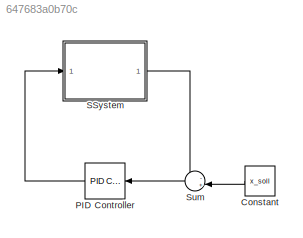
MODEL slx_647683a0b70c
KIND model
CONFIG AbsTol = auto
CONFIG EnableMultiTasking = off
CONFIG FixedStep = 1e-3
CONFIG MaxStep = auto
CONFIG MinStep = auto
CONFIG RelTol = 1e-3
CONFIG SampleTimeConstraint = Unconstrained
CONFIG Solver = ode8
CONFIG SolverName = ode8
CONFIG StartTime = 0.0
CONFIG StopTime = 30
BLOCK [Constant] Constant
  Value = x_soll
BLOCK [Reference] PID Controller  REF=simulink/Continuous/PID Controller
  Ports = [1, 1]
  SourceBlock = simulink/Continuous/PID Controller
  SourceProductBaseCode = SL
  SourceProductName = Simulink
  SourceType = PID 1dof
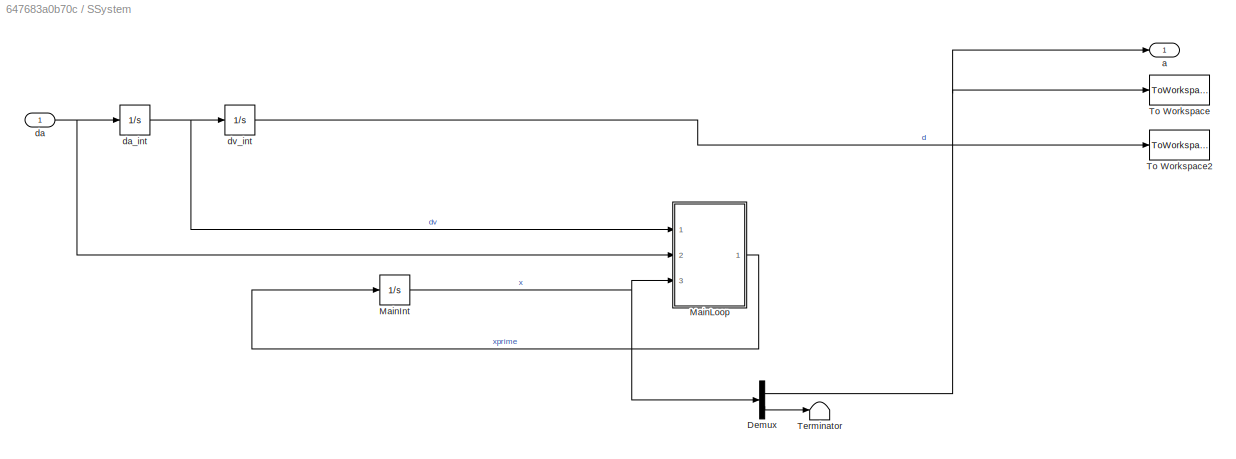
BLOCK [SubSystem] SSystem
  Ports = [1, 1]
  RequestExecContextInheritance = off
BLOCK [Demux] SSystem/Demux
  DisplayOption = bar
  Outputs = 2
  Ports = [1, 2]
BLOCK [Integrator] SSystem/MainInt
  InitialCondition = x_initial
  Ports = [1, 1]
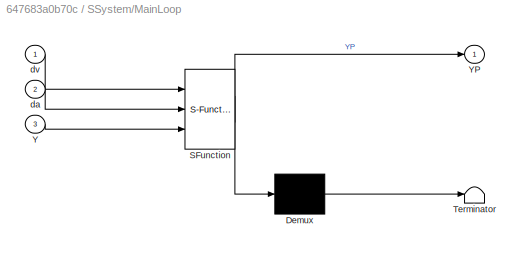
BLOCK [SubSystem] SSystem/MainLoop
  ErrorFcn = Stateflow.Translate.translate
  PermitHierarchicalResolution = ExplicitOnly
  Ports = [3, 1]
  RequestExecContextInheritance = off
  SFBlockType = MATLAB Function
  TreatAsAtomicUnit = on
BLOCK [Demux] SSystem/MainLoop/ Demux 
  Outputs = 1
  Ports = [1, 1]
BLOCK [S-Function] SSystem/MainLoop/ SFunction 
  EnableBusSupport = on
  FunctionName = sf_sfun
  PortCounts = [3 2]
  Ports = [3, 2]
  SFcnIsStateOwnerBlock = off
  SFunctionDeploymentMode = off
  Tag = Stateflow S-Function PID_Sim 2
BLOCK [Terminator] SSystem/MainLoop/ Terminator 
BLOCK [Inport] SSystem/MainLoop/Y
  IconDisplay = Port number
  Port = 3
BLOCK [Outport] SSystem/MainLoop/YP
  IconDisplay = Port number
BLOCK [Inport] SSystem/MainLoop/da
  IconDisplay = Port number
  Port = 2
BLOCK [Inport] SSystem/MainLoop/dv
  IconDisplay = Port number
BLOCK [Terminator] SSystem/Terminator
BLOCK [ToWorkspace] SSystem/To Workspace
  FixptAsFi = on
  MaxDataPoints = inf
  Ports = [1]
  SampleTime = -1
  Save2DSignal = 3-D array (concatenate along third dimension)
  SaveFormat = Timeseries
  VariableName = a
BLOCK [ToWorkspace] SSystem/To Workspace2
  FixptAsFi = on
  MaxDataPoints = inf
  Ports = [1]
  SampleTime = -1
  Save2DSignal = 3-D array (concatenate along third dimension)
  SaveFormat = Timeseries
  VariableName = d
BLOCK [Outport] SSystem/a
  IconDisplay = Port number
BLOCK [Inport] SSystem/da
  IconDisplay = Port number
BLOCK [Integrator] SSystem/da_int
  InitialCondition = d_initial(2)
  Ports = [1, 1]
BLOCK [Integrator] SSystem/dv_int
  InitialCondition = d_initial(1)
  Ports = [1, 1]
BLOCK [Sum] Sum
  IconShape = round
  InputSameDT = off
  Inputs = -+|
  OutDataTypeStr = Inherit: Inherit via internal rule
  Ports = [2, 1]
  SaturateOnIntegerOverflow = off
LINE Constant:1 -> Sum:2
LINE PID Controller:1 -> SSystem:1
NET SSystem/Demux:1 -> SSystem/To Workspace:1, SSystem/a:1
LINE SSystem/Demux:2 -> SSystem/Terminator:1
NET SSystem/MainInt:1 -> SSystem/Demux:1, SSystem/MainLoop:3
LINE SSystem/MainLoop:1 -> SSystem/MainInt:1
NET SSystem/da:1 -> SSystem/MainLoop:2, SSystem/da_int:1
NET SSystem/da_int:1 -> SSystem/MainLoop:1, SSystem/dv_int:1
LINE SSystem/dv_int:1 -> SSystem/To Workspace2:1
LINE SSystem:1 -> Sum:1
LINE Sum:1 -> PID Controller:1
note: NET lines group one-source signal fan-out (src -> all destinations, sorted); 1:1 wires keep LINE
CHART SSystem/MainLoop states=1 transitions=1
  STATE_LABEL 'eML_blk_kernel()'
  STATE_LABEL 'SCRIPT:\nfunction YP = MainLoop(dv,da,Y)\n    g = 9.81;\n    L = 10;\n    m=2;\n    lambda=1;\n\n    YP = zeros(2,1);\n\n    YP(1) = Y(2);\n    YP(2) = (-L * lambda * Y(2) - dv * cos(Y(1)) * lambda - da * cos(Y(1)) * m - sin(Y(1)) * g * m) / L / m;\n\nend'
